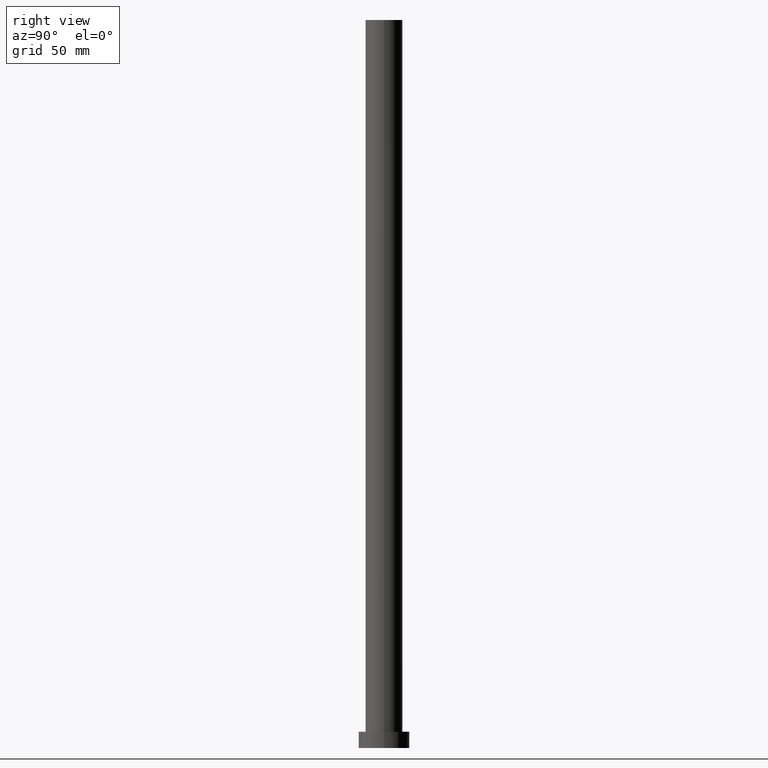
[diagram: clean part render]
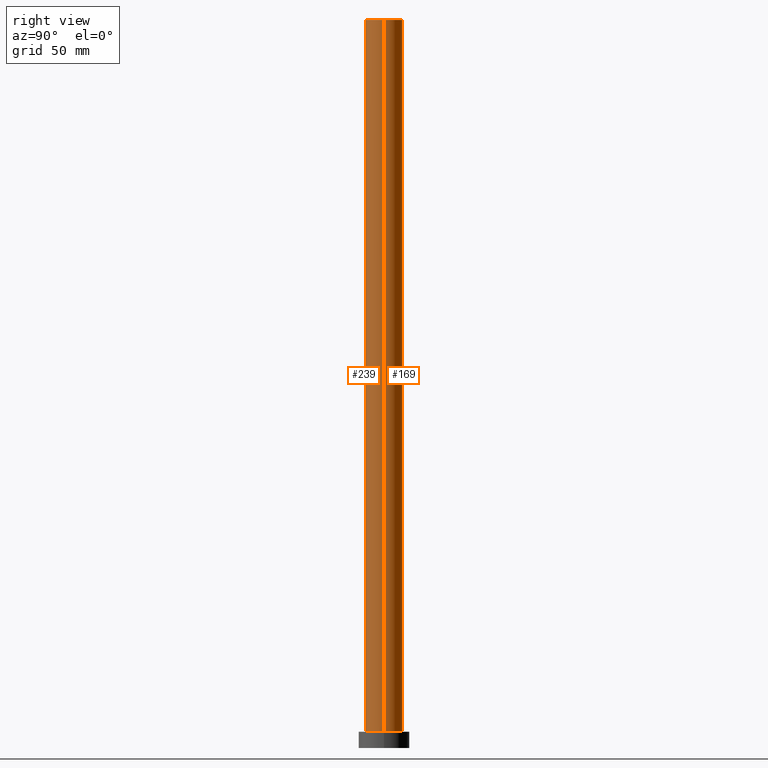
[diagram: same view with one multi-face feature highlighted, each face labeled with its STEP entity id]
A machine part, right view. The highlighted faces form ONE feature: a constant-radius fillet chain: 2 tangent blend faces with common blend radius 8 mm. The faces share edges in the B-rep.
Their STEP definitions:
[1] entity #239 (Cylinder):
#12 = VECTOR ( 'NONE', #89, 1000.000000000000000 ) ;
#17 = DIRECTION ( 'NONE',  ( 1.000000000000000000, 0.000000000000000000, 0.000000000000000000 ) ) ;
#19 = DIRECTION ( 'NONE',  ( 0.000000000000000000, 0.000000000000000000, 1.000000000000000000 ) ) ;
#21 = AXIS2_PLACEMENT_3D ( 'NONE', #255, #19, #190 ) ;
#23 = DIRECTION ( 'NONE',  ( -0.000000000000000000, -0.000000000000000000, -1.000000000000000000 ) ) ;
#28 = VERTEX_POINT ( 'NONE', #45 ) ;
#31 = AXIS2_PLACEMENT_3D ( 'NONE', #156, #192, #17 ) ;
#38 = CARTESIAN_POINT ( 'NONE',  ( 0.000000000000000000, 0.000000000000000000, 315.0000000000000000 ) ) ;
#45 = CARTESIAN_POINT ( 'NONE',  ( 8.000000000000000000, 9.797174393178825657E-16, 315.0000000000000000 ) ) ;
#48 = LINE ( 'NONE', #200, #53 ) ;
#53 = VECTOR ( 'NONE', #23, 1000.000000000000000 ) ;
#55 = DIRECTION ( 'NONE',  ( -1.000000000000000000, 0.000000000000000000, 0.000000000000000000 ) ) ;
#68 = EDGE_CURVE ( 'NONE', #28, #121, #48, .T. ) ;
#70 = FACE_OUTER_BOUND ( 'NONE', #167, .T. ) ;
#71 = CIRCLE ( 'NONE', #31, 8.000000000000000000 ) ;
#86 = ORIENTED_EDGE ( 'NONE', *, *, #68, .F. ) ;
#87 = AXIS2_PLACEMENT_3D ( 'NONE', #38, #175, #55 ) ;
#89 = DIRECTION ( 'NONE',  ( -0.000000000000000000, -0.000000000000000000, -1.000000000000000000 ) ) ;
#101 = VERTEX_POINT ( 'NONE', #181 ) ;
#107 = LINE ( 'NONE', #188, #12 ) ;
#121 = VERTEX_POINT ( 'NONE', #173 ) ;
#148 = ORIENTED_EDGE ( 'NONE', *, *, #189, .T. ) ;
#154 = CARTESIAN_POINT ( 'NONE',  ( -8.000000000000000000, 0.000000000000000000, 7.000000000000000000 ) ) ;
#156 = CARTESIAN_POINT ( 'NONE',  ( 0.000000000000000000, 0.000000000000000000, 7.000000000000000000 ) ) ;
#163 = VERTEX_POINT ( 'NONE', #154 ) ;
#167 = EDGE_LOOP ( 'NONE', ( #86, #237, #148, #221 ) ) ;
#173 = CARTESIAN_POINT ( 'NONE',  ( 8.000000000000000000, 9.797174393178825657E-16, 7.000000000000000000 ) ) ;
#175 = DIRECTION ( 'NONE',  ( -0.000000000000000000, -0.000000000000000000, -1.000000000000000000 ) ) ;
#181 = CARTESIAN_POINT ( 'NONE',  ( -8.000000000000000000, 0.000000000000000000, 315.0000000000000000 ) ) ;
#188 = CARTESIAN_POINT ( 'NONE',  ( -8.000000000000000000, 0.000000000000000000, 315.0000000000000000 ) ) ;
#189 = EDGE_CURVE ( 'NONE', #101, #163, #107, .T. ) ;
#190 = DIRECTION ( 'NONE',  ( 1.000000000000000000, 0.000000000000000000, 0.000000000000000000 ) ) ;
#192 = DIRECTION ( 'NONE',  ( 0.000000000000000000, 0.000000000000000000, 1.000000000000000000 ) ) ;
#200 = CARTESIAN_POINT ( 'NONE',  ( 8.000000000000000000, 9.797174393178825657E-16, 315.0000000000000000 ) ) ;
#212 = CYLINDRICAL_SURFACE ( 'NONE', #87, 8.000000000000000000 ) ;
#213 = EDGE_CURVE ( 'NONE', #101, #28, #226, .T. ) ;
#214 = EDGE_CURVE ( 'NONE', #163, #121, #71, .T. ) ;
#221 = ORIENTED_EDGE ( 'NONE', *, *, #214, .T. ) ;
#226 = CIRCLE ( 'NONE', #21, 8.000000000000000000 ) ;
#237 = ORIENTED_EDGE ( 'NONE', *, *, #213, .F. ) ;
#239 = ADVANCED_FACE ( 'NONE', ( #70 ), #212, .T. ) ;
#255 = CARTESIAN_POINT ( 'NONE',  ( 0.000000000000000000, 0.000000000000000000, 315.0000000000000000 ) ) ;
[2] entity #169 (Cylinder):
#12 = VECTOR ( 'NONE', #89, 1000.000000000000000 ) ;
#23 = DIRECTION ( 'NONE',  ( -0.000000000000000000, -0.000000000000000000, -1.000000000000000000 ) ) ;
#25 = DIRECTION ( 'NONE',  ( 0.000000000000000000, 0.000000000000000000, 1.000000000000000000 ) ) ;
#28 = VERTEX_POINT ( 'NONE', #45 ) ;
#39 = FACE_OUTER_BOUND ( 'NONE', #141, .T. ) ;
#45 = CARTESIAN_POINT ( 'NONE',  ( 8.000000000000000000, 9.797174393178825657E-16, 315.0000000000000000 ) ) ;
#48 = LINE ( 'NONE', #200, #53 ) ;
#53 = VECTOR ( 'NONE', #23, 1000.000000000000000 ) ;
#67 = DIRECTION ( 'NONE',  ( -0.000000000000000000, -0.000000000000000000, -1.000000000000000000 ) ) ;
#68 = EDGE_CURVE ( 'NONE', #28, #121, #48, .T. ) ;
#82 = AXIS2_PLACEMENT_3D ( 'NONE', #230, #67, #152 ) ;
#84 = ORIENTED_EDGE ( 'NONE', *, *, #94, .T. ) ;
#89 = DIRECTION ( 'NONE',  ( -0.000000000000000000, -0.000000000000000000, -1.000000000000000000 ) ) ;
#94 = EDGE_CURVE ( 'NONE', #121, #163, #111, .T. ) ;
#95 = CIRCLE ( 'NONE', #174, 8.000000000000000000 ) ;
#98 = ORIENTED_EDGE ( 'NONE', *, *, #189, .F. ) ;
#99 = CARTESIAN_POINT ( 'NONE',  ( 0.000000000000000000, 0.000000000000000000, 7.000000000000000000 ) ) ;
#101 = VERTEX_POINT ( 'NONE', #181 ) ;
#104 = DIRECTION ( 'NONE',  ( 0.000000000000000000, 0.000000000000000000, 1.000000000000000000 ) ) ;
#107 = LINE ( 'NONE', #188, #12 ) ;
#111 = CIRCLE ( 'NONE', #194, 8.000000000000000000 ) ;
#118 = EDGE_CURVE ( 'NONE', #28, #101, #95, .T. ) ;
#120 = ORIENTED_EDGE ( 'NONE', *, *, #68, .T. ) ;
#121 = VERTEX_POINT ( 'NONE', #173 ) ;
#141 = EDGE_LOOP ( 'NONE', ( #164, #120, #84, #98 ) ) ;
#152 = DIRECTION ( 'NONE',  ( -1.000000000000000000, 0.000000000000000000, 0.000000000000000000 ) ) ;
#154 = CARTESIAN_POINT ( 'NONE',  ( -8.000000000000000000, 0.000000000000000000, 7.000000000000000000 ) ) ;
#163 = VERTEX_POINT ( 'NONE', #154 ) ;
#164 = ORIENTED_EDGE ( 'NONE', *, *, #118, .F. ) ;
#169 = ADVANCED_FACE ( 'NONE', ( #39 ), #171, .T. ) ;
#171 = CYLINDRICAL_SURFACE ( 'NONE', #82, 8.000000000000000000 ) ;
#173 = CARTESIAN_POINT ( 'NONE',  ( 8.000000000000000000, 9.797174393178825657E-16, 7.000000000000000000 ) ) ;
#174 = AXIS2_PLACEMENT_3D ( 'NONE', #202, #25, #253 ) ;
#181 = CARTESIAN_POINT ( 'NONE',  ( -8.000000000000000000, 0.000000000000000000, 315.0000000000000000 ) ) ;
#185 = DIRECTION ( 'NONE',  ( 1.000000000000000000, 0.000000000000000000, 0.000000000000000000 ) ) ;
#188 = CARTESIAN_POINT ( 'NONE',  ( -8.000000000000000000, 0.000000000000000000, 315.0000000000000000 ) ) ;
#189 = EDGE_CURVE ( 'NONE', #101, #163, #107, .T. ) ;
#194 = AXIS2_PLACEMENT_3D ( 'NONE', #99, #104, #185 ) ;
#200 = CARTESIAN_POINT ( 'NONE',  ( 8.000000000000000000, 9.797174393178825657E-16, 315.0000000000000000 ) ) ;
#202 = CARTESIAN_POINT ( 'NONE',  ( 0.000000000000000000, 0.000000000000000000, 315.0000000000000000 ) ) ;
#230 = CARTESIAN_POINT ( 'NONE',  ( 0.000000000000000000, 0.000000000000000000, 315.0000000000000000 ) ) ;
#253 = DIRECTION ( 'NONE',  ( 1.000000000000000000, 0.000000000000000000, 0.000000000000000000 ) ) ;